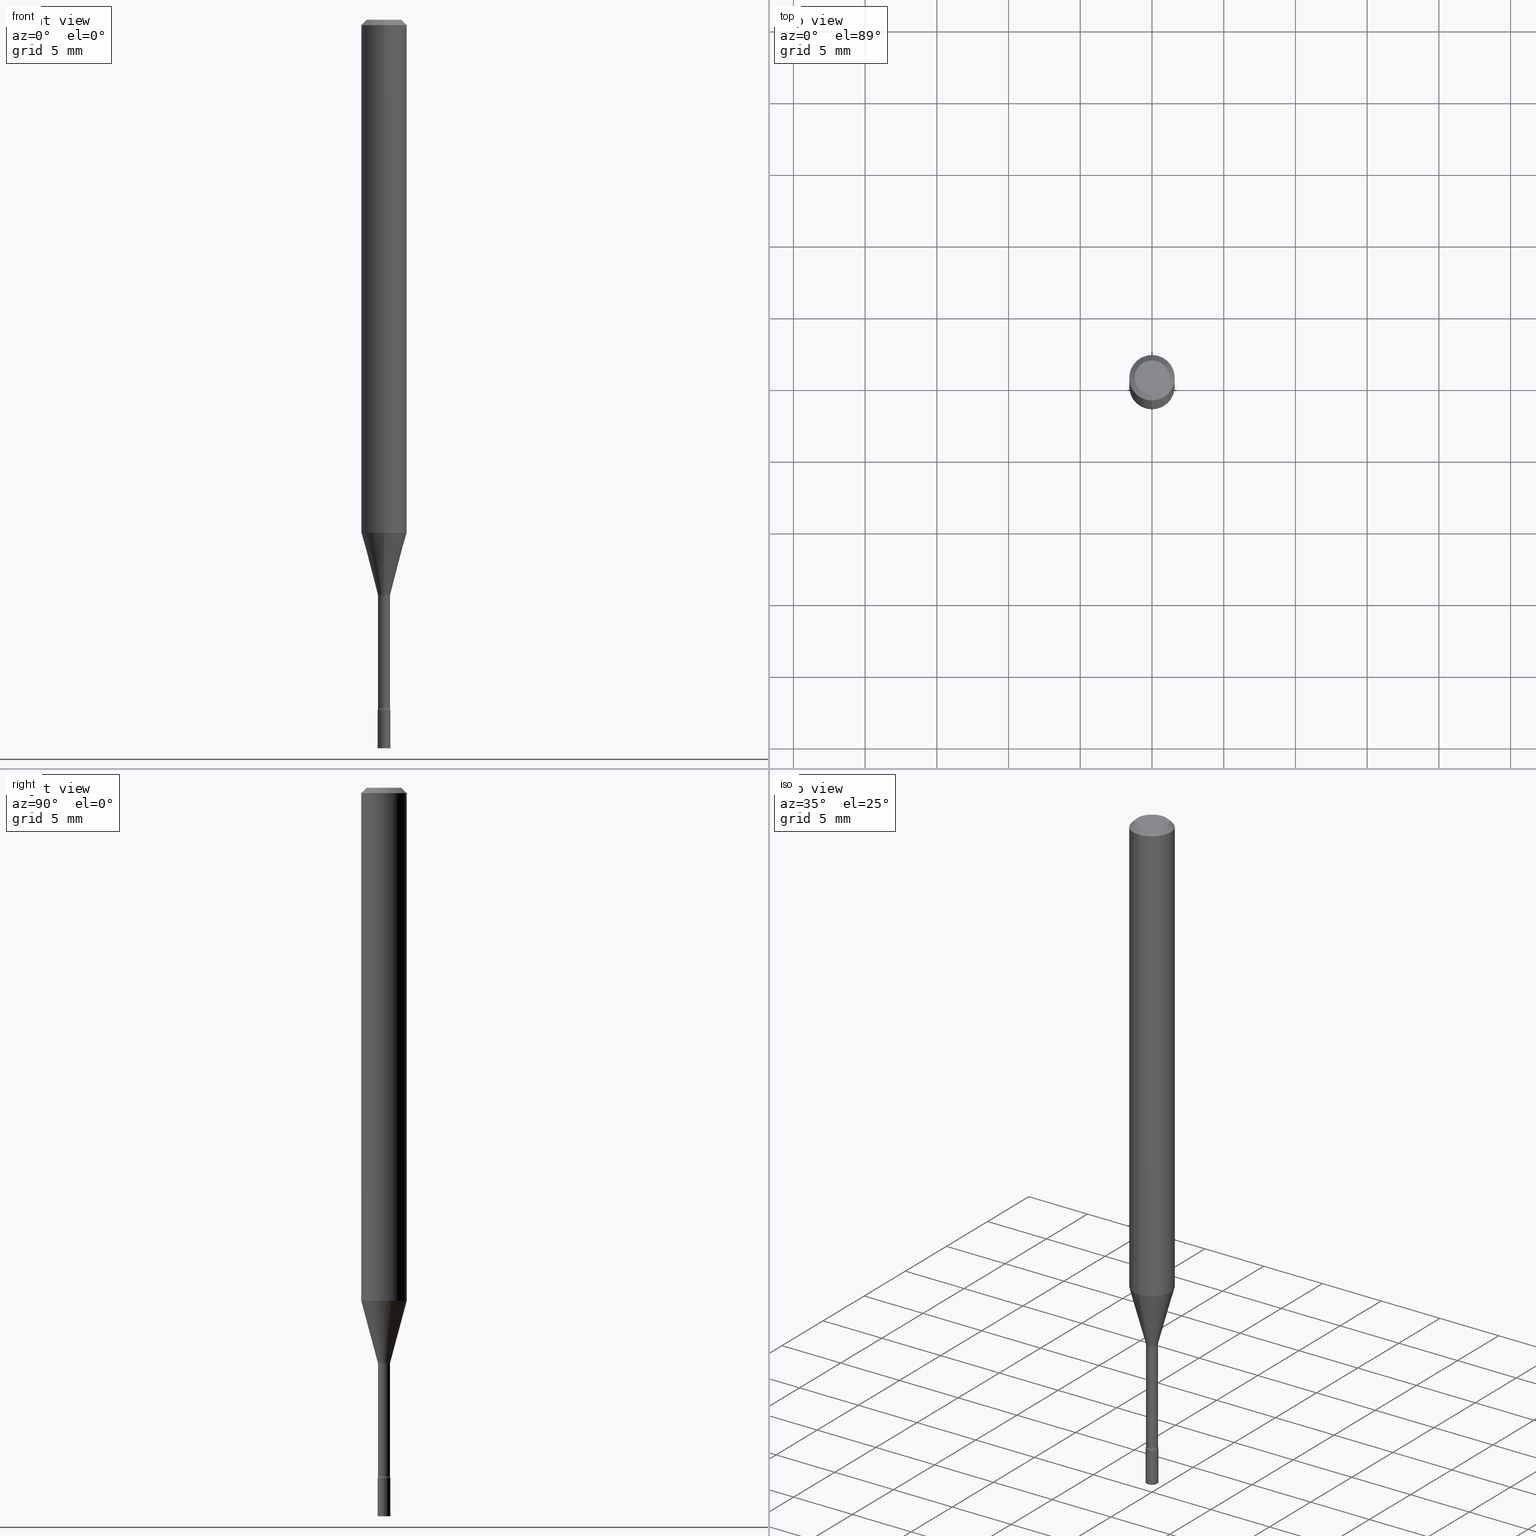
[diagram: canonical four-view strip — front | top / right | iso, engineering-drawing reading convention]
A machine part, canonical four-view strip (front | top / right | iso — engineering-drawing reading convention). The complete STEP part file that produces these views, byte-faithful:
ISO-10303-21;
HEADER;
FILE_DESCRIPTION (( 'STEP AP203' ),
    '1' );
FILE_NAME ('01345.STEP',
    '2024-03-08T21:15:26',
    ( '' ),
    ( '' ),
    'SwSTEP 2.0',
    'SolidWorks 2023',
    '' );
FILE_SCHEMA (( 'CONFIG_CONTROL_DESIGN' ));
ENDSEC;

DATA;
#1 = DIRECTION ( 'NONE',  ( -2.445468806185136877E-29, 3.491481338843145188E-15, 1.000000000000000000 ) ) ;
#2 = ORIENTED_EDGE ( 'NONE', *, *, #147, .F. ) ;
#3 = CARTESIAN_POINT ( 'NONE',  ( 2.234656903965901540E-16, 0.03144999999999447543, -1.581974787463811039 ) ) ;
#4 = EDGE_LOOP ( 'NONE', ( #88, #456, #252, #84 ) ) ;
#5 = CARTESIAN_POINT ( 'NONE',  ( 4.620736693591810603E-29, -6.597026839220941096E-15, -1.889486607215153047 ) ) ;
#6 = EDGE_CURVE ( 'NONE', #7, #242, #381, .T. ) ;
#7 = VERTEX_POINT ( 'NONE', #460 ) ;
#8 = DIRECTION ( 'NONE',  ( 6.982962677686265922E-15, 1.000000000000000000, -3.491438792966129242E-15 ) ) ;
#9 = ORIENTED_EDGE ( 'NONE', *, *, #70, .F. ) ;
#10 = FACE_OUTER_BOUND ( 'NONE', #274, .T. ) ;
#11 = AXIS2_PLACEMENT_3D ( 'NONE', #187, #190, #197 ) ;
#12 = CARTESIAN_POINT ( 'NONE',  ( -4.287811248607203282E-16, -0.06250000000000005551, -0.01499999999999981209 ) ) ;
#13 = LINE ( 'NONE', #81, #476 ) ;
#14 = CIRCLE ( 'NONE', #484, 0.01696111260566397771 ) ;
#15 = ORIENTED_EDGE ( 'NONE', *, *, #150, .T. ) ;
#16 = CARTESIAN_POINT ( 'NONE',  ( 0.000000000000000000, 0.000000000000000000, 0.000000000000000000 ) ) ;
#17 = FACE_OUTER_BOUND ( 'NONE', #333, .T. ) ;
#18 = DIRECTION ( 'NONE',  ( -1.000000000000000000, 6.982962677686265922E-15, -4.883557194083112340E-29 ) ) ;
#19 = CARTESIAN_POINT ( 'NONE',  ( 0.01750000000000000167, -1.222018468595096625E-16, 8.533309357642889039E-31 ) ) ;
#20 = CALENDAR_DATE ( 2024, 8, 3 ) ;
#21 = TOROIDAL_SURFACE ( 'NONE', #49, 0.03145000000000004042, 0.01500000000000001853 ) ;
#22 = APPROVAL_PERSON_ORGANIZATION ( #258, #38, #379 ) ;
#23 = EDGE_CURVE ( 'NONE', #98, #122, #200, .T. ) ;
#24 = ORIENTED_EDGE ( 'NONE', *, *, #6, .F. ) ;
#25 = DIRECTION ( 'NONE',  ( -6.982962677686265922E-15, -1.000000000000000000, 3.483106191921935554E-15 ) ) ;
#26 = DATE_AND_TIME ( #20, #148 ) ;
#27 = ORIENTED_EDGE ( 'NONE', *, *, #254, .T. ) ;
#28 = APPROVAL_DATE_TIME ( #26, #38 ) ;
#29 = CIRCLE ( 'NONE', #11, 0.01644999999999999934 ) ;
#30 = SECURITY_CLASSIFICATION ( '', '', #389 ) ;
#31 = DIRECTION ( 'NONE',  ( -2.445498515812265723E-29, 3.491438792966129637E-15, 1.000000000000000000 ) ) ;
#32 = CONICAL_SURFACE ( 'NONE', #69, 0.06250000000000000000, 0.7853981633974483900 ) ;
#33 = CIRCLE ( 'NONE', #403, 0.01644999999999999934 ) ;
#34 = DIRECTION ( 'NONE',  ( 1.000000000000000000, -6.982962677686248567E-15, 0.000000000000000000 ) ) ;
#35 = EDGE_LOOP ( 'NONE', ( #421, #27, #53, #417 ) ) ;
#36 = ORIENTED_EDGE ( 'NONE', *, *, #23, .T. ) ;
#37 = ORIENTED_EDGE ( 'NONE', *, *, #223, .T. ) ;
#38 = APPROVAL ( #425, 'UNSPECIFIED' ) ;
#39 = CARTESIAN_POINT ( 'NONE',  ( 4.620680557649244882E-29, -6.597107229085755306E-15, -1.889486607215153047 ) ) ;
#40 = DIRECTION ( 'NONE',  ( 7.105427357601001859E-15, 1.000000000000000000, 0.000000000000000000 ) ) ;
#41 = CIRCLE ( 'NONE', #401, 0.01750000000000000167 ) ;
#42 = LOCAL_TIME ( 16, 15, 26.00000000000000000, #134 ) ;
#43 = CARTESIAN_POINT ( 'NONE',  ( 3.859222870935241338E-29, -5.509813379629055980E-15, -1.578092501787273116 ) ) ;
#44 = PLANE ( 'NONE',  #395 ) ;
#45 = DIRECTION ( 'NONE',  ( -2.445498515812265723E-29, 3.491438792966129637E-15, 1.000000000000000000 ) ) ;
#46 = DIRECTION ( 'NONE',  ( -1.000000000000000000, 6.982962677686265922E-15, -4.883557194083112340E-29 ) ) ;
#47 = ORIENTED_EDGE ( 'NONE', *, *, #254, .F. ) ;
#48 = CALENDAR_DATE ( 2024, 8, 3 ) ;
#49 = AXIS2_PLACEMENT_3D ( 'NONE', #39, #392, #311 ) ;
#50 = CIRCLE ( 'NONE', #518, 0.01645000000000002363 ) ;
#51 = CIRCLE ( 'NONE', #414, 0.06250000000000000000 ) ;
#52 = CARTESIAN_POINT ( 'NONE',  ( -1.148697360479391503E-16, -0.01645000000000000975, 5.743416814429288012E-17 ) ) ;
#53 = ORIENTED_EDGE ( 'NONE', *, *, #85, .T. ) ;
#54 = ORIENTED_EDGE ( 'NONE', *, *, #214, .F. ) ;
#55 = CARTESIAN_POINT ( 'NONE',  ( 3.668247773718405836E-31, -5.237158189449205006E-17, -0.01500000000000003067 ) ) ;
#56 = DIRECTION ( 'NONE',  ( -2.445498515812265723E-29, 3.491438792966129637E-15, 1.000000000000000000 ) ) ;
#57 = CARTESIAN_POINT ( 'NONE',  ( 3.668247773718405836E-31, -5.237158189449205006E-17, -0.01500000000000003067 ) ) ;
#58 = ORIENTED_EDGE ( 'NONE', *, *, #474, .F. ) ;
#59 = ADVANCED_FACE ( 'NONE', ( #17 ), #452, .F. ) ;
#60 = CARTESIAN_POINT ( 'NONE',  ( -4.364351673553916201E-16, -0.06250000000000000000, 2.182149245603831023E-16 ) ) ;
#61 = LINE ( 'NONE', #19, #166 ) ;
#62 = COORDINATED_UNIVERSAL_TIME_OFFSET ( 5, 0, .BEHIND. ) ;
#63 = VECTOR ( 'NONE', #409, 39.37007874015748143 ) ;
#64 = CC_DESIGN_APPROVAL ( #264, ( #213 ) ) ;
#65 = MANIFOLD_SOLID_BREP ( 'Body-Move/Copy2[2]', #308 ) ;
#66 = PERSON_AND_ORGANIZATION ( #358, #507 ) ;
#67 = DIMENSIONAL_EXPONENTS ( 1.000000000000000000, 0.000000000000000000, 0.000000000000000000, 0.000000000000000000, 0.000000000000000000, 0.000000000000000000, 0.000000000000000000 ) ;
#68 = APPLICATION_PROTOCOL_DEFINITION ( 'international standard', 'config_control_design', 1994, #354 ) ;
#69 = AXIS2_PLACEMENT_3D ( 'NONE', #184, #267, #360 ) ;
#70 = EDGE_CURVE ( 'NONE', #104, #122, #378, .T. ) ;
#71 = CARTESIAN_POINT ( 'NONE',  ( 4.634163387720833649E-29, -6.616357137107760427E-15, -1.894999999999999796 ) ) ;
#72 = DIRECTION ( 'NONE',  ( 1.000000000000000000, -6.982962677686248567E-15, 0.000000000000000000 ) ) ;
#73 = AXIS2_PLACEMENT_3D ( 'NONE', #439, #77, #40 ) ;
#74 = TOROIDAL_SURFACE ( 'NONE', #355, 0.03144999999999999879, 0.01500000000000002547 ) ;
#75 = CARTESIAN_POINT ( 'NONE',  ( 1.222018468595585719E-16, 0.01749999999999301767, -2.000000000000000000 ) ) ;
#76 = ORIENTED_EDGE ( 'NONE', *, *, #150, .F. ) ;
#77 = DIRECTION ( 'NONE',  ( 1.000000000000000000, -7.105427357601001070E-15, 4.926314987505360953E-29 ) ) ;
#78 = ADVANCED_FACE ( 'NONE', ( #171 ), #93, .T. ) ;
#79 = DIRECTION ( 'NONE',  ( -6.982962677686265922E-15, -1.000000000000000000, 0.000000000000000000 ) ) ;
#80 = ORIENTED_EDGE ( 'NONE', *, *, #97, .F. ) ;
#81 = CARTESIAN_POINT ( 'NONE',  ( 4.364351673553919652E-16, 0.06249999999999995143, -0.01500000000000024751 ) ) ;
#82 = AXIS2_PLACEMENT_3D ( 'NONE', #75, #226, #503 ) ;
#83 = PRODUCT_RELATED_PRODUCT_CATEGORY ( 'detail', '', ( #477 ) ) ;
#84 = ORIENTED_EDGE ( 'NONE', *, *, #23, .F. ) ;
#85 = EDGE_CURVE ( 'NONE', #117, #371, #61, .T. ) ;
#86 = DIRECTION ( 'NONE',  ( -6.982962677686265133E-15, -1.000000000000000000, 3.491438792966130031E-15 ) ) ;
#87 = CARTESIAN_POINT ( 'NONE',  ( -1.222018468594633662E-16, -0.01750000000000662484, -1.894999999999999796 ) ) ;
#88 = ORIENTED_EDGE ( 'NONE', *, *, #97, .T. ) ;
#89 = DIRECTION ( 'NONE',  ( -2.445468806185136597E-29, 3.491481338843145583E-15, 1.000000000000000000 ) ) ;
#90 = DIRECTION ( 'NONE',  ( -6.982962677686266711E-15, -1.000000000000000000, 0.000000000000000000 ) ) ;
#91 = EDGE_LOOP ( 'NONE', ( #96, #302, #36, #256 ) ) ;
#92 = CIRCLE ( 'NONE', #273, 0.01750000000000000167 ) ;
#93 = CYLINDRICAL_SURFACE ( 'NONE', #216, 0.06250000000000000000 ) ;
#94 = CYLINDRICAL_SURFACE ( 'NONE', #322, 0.01645000000000000975 ) ;
#95 = CARTESIAN_POINT ( 'NONE',  ( -1.184388162973470360E-16, -0.01696111260566949067, -1.578092501787273116 ) ) ;
#96 = ORIENTED_EDGE ( 'NONE', *, *, #143, .F. ) ;
#97 = EDGE_CURVE ( 'NONE', #98, #133, #152, .T. ) ;
#98 = VERTEX_POINT ( 'NONE', #450 ) ;
#99 = CARTESIAN_POINT ( 'NONE',  ( 4.440892098500969316E-16, 0.06249999999999507339, -1.408139060311453639 ) ) ;
#100 = PERSON_AND_ORGANIZATION_ROLE ( 'classification_officer' ) ;
#101 = DIRECTION ( 'NONE',  ( -2.445498515812266003E-29, 3.491438792966129242E-15, 1.000000000000000000 ) ) ;
#102 = VERTEX_POINT ( 'NONE', #248 ) ;
#103 = DIRECTION ( 'NONE',  ( -2.445498515812265723E-29, 3.491438792966129637E-15, 1.000000000000000000 ) ) ;
#104 = VERTEX_POINT ( 'NONE', #334 ) ;
#105 = DIRECTION ( 'NONE',  ( -2.445468806185136597E-29, 3.491481338843145583E-15, 1.000000000000000000 ) ) ;
#106 = DATE_TIME_ROLE ( 'classification_date' ) ;
#107 = CIRCLE ( 'NONE', #413, 0.01750000000000000167 ) ;
#108 = VECTOR ( 'NONE', #283, 39.37007874015748143 ) ;
#109 = MECHANICAL_CONTEXT ( 'NONE', #454, 'mechanical' ) ;
#110 = PERSON_AND_ORGANIZATION ( #358, #507 ) ;
#111 = ORIENTED_EDGE ( 'NONE', *, *, #278, .T. ) ;
#112 = AXIS2_PLACEMENT_3D ( 'NONE', #71, #317, #478 ) ;
#113 = EDGE_CURVE ( 'NONE', #122, #368, #235, .T. ) ;
#114 = DIRECTION ( 'NONE',  ( -6.982962677686266711E-15, -1.000000000000000000, 3.491438792966129637E-15 ) ) ;
#115 = DIRECTION ( 'NONE',  ( -2.445498515812265723E-29, 3.491438792966129637E-15, 1.000000000000000000 ) ) ;
#116 = DIRECTION ( 'NONE',  ( -2.445498515812265723E-29, 3.491438792966129637E-15, 1.000000000000000000 ) ) ;
#117 = VERTEX_POINT ( 'NONE', #207 ) ;
#118 = ORIENTED_EDGE ( 'NONE', *, *, #443, .T. ) ;
#119 = CIRCLE ( 'NONE', #112, 0.01750000000000000167 ) ;
#120 = CIRCLE ( 'NONE', #167, 0.01500000000000001853 ) ;
#121 = DIRECTION ( 'NONE',  ( -2.445498515812265723E-29, 3.491438792966129637E-15, 1.000000000000000000 ) ) ;
#122 = VERTEX_POINT ( 'NONE', #298 ) ;
#123 =( LENGTH_UNIT ( ) NAMED_UNIT ( * ) SI_UNIT ( $, .METRE. ) );
#124 = VERTEX_POINT ( 'NONE', #458 ) ;
#125 = FACE_OUTER_BOUND ( 'NONE', #250, .T. ) ;
#126 = ORIENTED_EDGE ( 'NONE', *, *, #194, .F. ) ;
#127 = VECTOR ( 'NONE', #257, 39.37007874015748143 ) ;
#128 = LOCAL_TIME ( 16, 15, 26.00000000000000000, #307 ) ;
#129 = DIRECTION ( 'NONE',  ( -1.807323732225325801E-15, -0.2588190451025175753, 0.9659258262890690894 ) ) ;
#130 = VERTEX_POINT ( 'NONE', #509 ) ;
#131 = UNCERTAINTY_MEASURE_WITH_UNIT (LENGTH_MEASURE( 1.000000000000000082E-05 ), #204, 'distance_accuracy_value', 'NONE');
#132 = DIRECTION ( 'NONE',  ( -6.982962677686265133E-15, -1.000000000000000000, 3.491438792966129242E-15 ) ) ;
#133 = VERTEX_POINT ( 'NONE', #99 ) ;
#134 = COORDINATED_UNIVERSAL_TIME_OFFSET ( 5, 0, .BEHIND. ) ;
#135 = ORIENTED_EDGE ( 'NONE', *, *, #233, .F. ) ;
#136 = DIRECTION ( 'NONE',  ( -2.445468806185136877E-29, 3.491481338843145188E-15, 1.000000000000000000 ) ) ;
#137 = CARTESIAN_POINT ( 'NONE',  ( 4.620736693591810603E-29, -6.597026839220941096E-15, -1.889486607215153047 ) ) ;
#138 = ADVANCED_FACE ( 'NONE', ( #175 ), #496, .T. ) ;
#139 = ADVANCED_FACE ( 'NONE', ( #428 ), #287, .T. ) ;
#140 = ORIENTED_EDGE ( 'NONE', *, *, #453, .F. ) ;
#141 = DIRECTION ( 'NONE',  ( -2.445498515812265723E-29, 3.491438792966129637E-15, 1.000000000000000000 ) ) ;
#142 =( NAMED_UNIT ( * ) PLANE_ANGLE_UNIT ( ) SI_UNIT ( $, .RADIAN. ) );
#143 = EDGE_CURVE ( 'NONE', #133, #368, #348, .T. ) ;
#144 = FACE_OUTER_BOUND ( 'NONE', #445, .T. ) ;
#145 = CARTESIAN_POINT ( 'NONE',  ( 0.000000000000000000, 0.000000000000000000, 0.000000000000000000 ) ) ;
#146 = CALENDAR_DATE ( 2024, 8, 3 ) ;
#147 = EDGE_CURVE ( 'NONE', #124, #102, #29, .T. ) ;
#148 = LOCAL_TIME ( 16, 15, 26.00000000000000000, #471 ) ;
#149 = CARTESIAN_POINT ( 'NONE',  ( 4.440892098500625669E-16, 0.06250000000000000000, -2.182149245603831023E-16 ) ) ;
#150 = EDGE_CURVE ( 'NONE', #377, #124, #288, .T. ) ;
#151 = ADVANCED_FACE ( 'NONE', ( #380 ), #275, .T. ) ;
#152 = CIRCLE ( 'NONE', #366, 0.06250000000000000000 ) ;
#153 = CARTESIAN_POINT ( 'NONE',  ( 1.243449787580639146E-16, 0.01749999999999339237, -1.894999999999999796 ) ) ;
#154 = ADVANCED_BREP_SHAPE_REPRESENTATION ( '01345', ( #228, #65, #247 ), #236 ) ;
#155 = AXIS2_PLACEMENT_3D ( 'NONE', #312, #221, #183 ) ;
#156 = ORIENTED_EDGE ( 'NONE', *, *, #325, .F. ) ;
#157 = PLANE ( 'NONE',  #281 ) ;
#158 = CARTESIAN_POINT ( 'NONE',  ( 7.071386843968881150E-46, -1.009582062203901390E-31, -2.891593185702727337E-17 ) ) ;
#159 = ADVANCED_FACE ( 'NONE', ( #215 ), #375, .T. ) ;
#160 = ORIENTED_EDGE ( 'NONE', *, *, #278, .F. ) ;
#161 = DIRECTION ( 'NONE',  ( -2.445498515812265723E-29, 3.491438792966129637E-15, 1.000000000000000000 ) ) ;
#162 = ADVANCED_FACE ( 'NONE', ( #181 ), #350, .T. ) ;
#163 = ADVANCED_FACE ( 'NONE', ( #188 ), #32, .T. ) ;
#164 = FACE_OUTER_BOUND ( 'NONE', #165, .T. ) ;
#165 = EDGE_LOOP ( 'NONE', ( #156, #118, #15, #58 ) ) ;
#166 = VECTOR ( 'NONE', #136, 39.37007874015748143 ) ;
#167 = AXIS2_PLACEMENT_3D ( 'NONE', #327, #18, #319 ) ;
#168 = DIRECTION ( 'NONE',  ( -2.445498515812265723E-29, 3.491438792966129637E-15, 1.000000000000000000 ) ) ;
#169 = DIRECTION ( 'NONE',  ( -2.445498515812265723E-29, 3.491438792966129637E-15, 1.000000000000000000 ) ) ;
#170 = APPROVAL_ROLE ( '' ) ;
#171 = FACE_OUTER_BOUND ( 'NONE', #4, .T. ) ;
#172 = DIRECTION ( 'NONE',  ( 2.445498515812265723E-29, -3.491438792966129637E-15, -1.000000000000000000 ) ) ;
#173 = VECTOR ( 'NONE', #209, 39.37007874015748143 ) ;
#174 = VECTOR ( 'NONE', #129, 39.37007874015748854 ) ;
#175 = FACE_OUTER_BOUND ( 'NONE', #306, .T. ) ;
#176 = COORDINATED_UNIVERSAL_TIME_OFFSET ( 5, 0, .BEHIND. ) ;
#177 = CARTESIAN_POINT ( 'NONE',  ( 3.868669994914111510E-29, -5.523435448950248304E-15, -1.581974787463811039 ) ) ;
#178 = PERSON_AND_ORGANIZATION ( #358, #507 ) ;
#179 = CIRCLE ( 'NONE', #483, 0.01750000000000000167 ) ;
#180 = CIRCLE ( 'NONE', #282, 0.06250000000000000000 ) ;
#181 = FACE_OUTER_BOUND ( 'NONE', #91, .T. ) ;
#182 = EDGE_CURVE ( 'NONE', #242, #300, #107, .T. ) ;
#183 = DIRECTION ( 'NONE',  ( -6.982962677686266711E-15, -1.000000000000000000, 3.491438792966129637E-15 ) ) ;
#184 = CARTESIAN_POINT ( 'NONE',  ( 3.668247773718405836E-31, -5.237158189449205006E-17, -0.01500000000000003067 ) ) ;
#185 = AXIS2_PLACEMENT_3D ( 'NONE', #177, #212, #291 ) ;
#186 = CARTESIAN_POINT ( 'NONE',  ( -0.01750000000000000167, 1.243449787580175444E-16, -8.608136407946085539E-31 ) ) ;
#187 = CARTESIAN_POINT ( 'NONE',  ( 3.868716994795174635E-29, -5.523368142445497990E-15, -1.581974787463811039 ) ) ;
#188 = FACE_OUTER_BOUND ( 'NONE', #398, .T. ) ;
#189 = ORIENTED_EDGE ( 'NONE', *, *, #498, .T. ) ;
#190 = DIRECTION ( 'NONE',  ( -2.445498515812265723E-29, 3.491438792966129637E-15, 1.000000000000000000 ) ) ;
#191 = CC_DESIGN_PERSON_AND_ORGANIZATION_ASSIGNMENT ( #210, #349, ( #477 ) ) ;
#192 = CONICAL_SURFACE ( 'NONE', #512, 0.01696111260566397771, 0.2617993877991496299 ) ;
#193 = TOROIDAL_SURFACE ( 'NONE', #426, 0.03145000000000004042, 0.01500000000000001853 ) ;
#194 = EDGE_CURVE ( 'NONE', #272, #102, #466, .T. ) ;
#195 = ADVANCED_FACE ( 'NONE', ( #397 ), #192, .T. ) ;
#196 = PLANE ( 'NONE',  #367 ) ;
#197 = DIRECTION ( 'NONE',  ( -6.982962677686266711E-15, -1.000000000000000000, 0.000000000000000000 ) ) ;
#198 = EDGE_CURVE ( 'NONE', #130, #104, #314, .T. ) ;
#199 = CARTESIAN_POINT ( 'NONE',  ( 3.859222870935241338E-29, -5.509813379629055980E-15, -1.578092501787273116 ) ) ;
#200 = LINE ( 'NONE', #60, #127 ) ;
#201 = CARTESIAN_POINT ( 'NONE',  ( -1.184388162973470360E-16, -0.01696111260566949067, -1.578092501787273116 ) ) ;
#202 = CARTESIAN_POINT ( 'NONE',  ( 0.000000000000000000, 0.000000000000000000, 0.000000000000000000 ) ) ;
#203 = ORIENTED_EDGE ( 'NONE', *, *, #194, .T. ) ;
#204 =( CONVERSION_BASED_UNIT ( 'INCH', #280 ) LENGTH_UNIT ( ) NAMED_UNIT ( #67 ) );
#205 = ORIENTED_EDGE ( 'NONE', *, *, #391, .F. ) ;
#206 = ORIENTED_EDGE ( 'NONE', *, *, #488, .T. ) ;
#207 = CARTESIAN_POINT ( 'NONE',  ( 0.01750000000000000167, -7.105164524545800359E-15, -2.000000000000000000 ) ) ;
#208 = CARTESIAN_POINT ( 'NONE',  ( 3.316907271900976096E-16, 0.04749999999999999362, -1.803013085944047814E-16 ) ) ;
#209 = DIRECTION ( 'NONE',  ( -4.851104656540964275E-15, -0.7071067811865500152, -0.7071067811865450192 ) ) ;
#210 = PERSON_AND_ORGANIZATION ( #358, #507 ) ;
#211 = AXIS2_PLACEMENT_3D ( 'NONE', #145, #105, #339 ) ;
#212 = DIRECTION ( 'NONE',  ( -2.445498515812265723E-29, 3.491438792966129637E-15, 1.000000000000000000 ) ) ;
#213 = PRODUCT_DEFINITION ( 'UNKNOWN', '', #455, #446 ) ;
#214 = EDGE_CURVE ( 'NONE', #371, #313, #475, .T. ) ;
#215 = FACE_OUTER_BOUND ( 'NONE', #290, .T. ) ;
#216 = AXIS2_PLACEMENT_3D ( 'NONE', #501, #261, #504 ) ;
#217 = DATE_AND_TIME ( #146, #269 ) ;
#218 = APPROVAL_PERSON_ORGANIZATION ( #429, #264, #422 ) ;
#219 = CARTESIAN_POINT ( 'NONE',  ( 4.890937612370273194E-29, -6.982962677686291165E-15, -2.000000000000000000 ) ) ;
#220 = DIRECTION ( 'NONE',  ( 1.000000000000000000, -6.982962677686248567E-15, 0.000000000000000000 ) ) ;
#221 = DIRECTION ( 'NONE',  ( -2.445498515812265723E-29, 3.491438792966129637E-15, 1.000000000000000000 ) ) ;
#222 = EDGE_LOOP ( 'NONE', ( #229, #246, #260, #227 ) ) ;
#223 = EDGE_CURVE ( 'NONE', #117, #486, #92, .T. ) ;
#224 = AXIS2_PLACEMENT_3D ( 'NONE', #55, #418, #25 ) ;
#225 = AXIS2_PLACEMENT_3D ( 'NONE', #199, #318, #331 ) ;
#226 = DIRECTION ( 'NONE',  ( 2.438088387897960049E-29, -3.491481338843145188E-15, -1.000000000000000000 ) ) ;
#227 = ORIENTED_EDGE ( 'NONE', *, *, #520, .F. ) ;
#228 = MANIFOLD_SOLID_BREP ( 'Body-Move/Copy2[1]', #394 ) ;
#229 = ORIENTED_EDGE ( 'NONE', *, *, #443, .F. ) ;
#230 = CARTESIAN_POINT ( 'NONE',  ( 3.859222870935241338E-29, -5.509813379629055980E-15, -1.578092501787273116 ) ) ;
#231 = CARTESIAN_POINT ( 'NONE',  ( -0.01750000000000000167, -6.675314928639007365E-15, -1.894999999999999796 ) ) ;
#232 = ADVANCED_FACE ( 'NONE', ( #277 ), #21, .F. ) ;
#233 = EDGE_CURVE ( 'NONE', #377, #7, #336, .T. ) ;
#234 = DIRECTION ( 'NONE',  ( 1.000000000000000000, -6.982962677686265922E-15, 4.876176775795935793E-29 ) ) ;
#235 = CIRCLE ( 'NONE', #224, 0.06250000000000000000 ) ;
#236 =( GEOMETRIC_REPRESENTATION_CONTEXT ( 3 ) GLOBAL_UNCERTAINTY_ASSIGNED_CONTEXT ( ( #131 ) ) GLOBAL_UNIT_ASSIGNED_CONTEXT ( ( #204, #142, #385 ) ) REPRESENTATION_CONTEXT ( 'NONE', 'WORKASPACE' ) );
#237 = DIRECTION ( 'NONE',  ( -6.982962677686265922E-15, -1.000000000000000000, 3.491438792966129242E-15 ) ) ;
#238 = FACE_OUTER_BOUND ( 'NONE', #405, .T. ) ;
#239 = CARTESIAN_POINT ( 'NONE',  ( 3.668247773718405836E-31, -5.237158189449205006E-17, -0.01500000000000003067 ) ) ;
#240 = CARTESIAN_POINT ( 'NONE',  ( 4.440892098500972274E-16, 0.06249999999999993755, -0.01500000000000024751 ) ) ;
#241 = CARTESIAN_POINT ( 'NONE',  ( 1.168842800325365499E-16, 0.01645000000000000975, -5.743416814429288012E-17 ) ) ;
#242 = VERTEX_POINT ( 'NONE', #153 ) ;
#243 = DIRECTION ( 'NONE',  ( -6.982962677686265922E-15, -1.000000000000000000, 3.483106191921935554E-15 ) ) ;
#244 = EDGE_CURVE ( 'NONE', #313, #371, #119, .T. ) ;
#245 = AXIS2_PLACEMENT_3D ( 'NONE', #202, #168, #328 ) ;
#246 = ORIENTED_EDGE ( 'NONE', *, *, #6, .T. ) ;
#247 = AXIS2_PLACEMENT_3D ( 'NONE', #299, #305, #340 ) ;
#248 = CARTESIAN_POINT ( 'NONE',  ( 1.168842800325827475E-16, 0.01644999999999447599, -1.581974787463811039 ) ) ;
#249 = DIRECTION ( 'NONE',  ( -6.982962677686266711E-15, -1.000000000000000000, 3.491438792966130426E-15 ) ) ;
#250 = EDGE_LOOP ( 'NONE', ( #24, #135, #468, #111 ) ) ;
#251 = CARTESIAN_POINT ( 'NONE',  ( 2.823025816868859611E-16, 0.01696111260565846823, -1.578092501787273116 ) ) ;
#252 = ORIENTED_EDGE ( 'NONE', *, *, #113, .F. ) ;
#253 = CALENDAR_DATE ( 2024, 8, 3 ) ;
#254 = EDGE_CURVE ( 'NONE', #486, #117, #179, .T. ) ;
#255 = EDGE_CURVE ( 'NONE', #104, #130, #388, .T. ) ;
#256 = ORIENTED_EDGE ( 'NONE', *, *, #430, .F. ) ;
#257 = DIRECTION ( 'NONE',  ( -2.445498515812266003E-29, 3.491438792966129242E-15, 1.000000000000000000 ) ) ;
#258 = PERSON_AND_ORGANIZATION ( #358, #507 ) ;
#259 = CARTESIAN_POINT ( 'NONE',  ( 0.000000000000000000, 0.000000000000000000, 0.000000000000000000 ) ) ;
#260 = ORIENTED_EDGE ( 'NONE', *, *, #182, .T. ) ;
#261 = DIRECTION ( 'NONE',  ( -2.445498515812265723E-29, 3.491438792966129637E-15, 1.000000000000000000 ) ) ;
#262 = APPROVAL_DATE_TIME ( #217, #264 ) ;
#263 = EDGE_CURVE ( 'NONE', #486, #313, #393, .T. ) ;
#264 = APPROVAL ( #461, 'UNSPECIFIED' ) ;
#265 = PERSON_AND_ORGANIZATION_ROLE ( 'design_supplier' ) ;
#266 = ADVANCED_FACE ( 'NONE', ( #351 ), #479, .T. ) ;
#267 = DIRECTION ( 'NONE',  ( 2.445498515812265723E-29, -3.491438792966129637E-15, -1.000000000000000000 ) ) ;
#268 = AXIS2_PLACEMENT_3D ( 'NONE', #5, #115, #434 ) ;
#269 = LOCAL_TIME ( 16, 15, 26.00000000000000000, #62 ) ;
#270 = DIRECTION ( 'NONE',  ( -2.445468806185136597E-29, 3.491481338843145583E-15, 1.000000000000000000 ) ) ;
#271 = DIRECTION ( 'NONE',  ( 7.105427357601000281E-15, 1.000000000000000000, 0.000000000000000000 ) ) ;
#272 = VERTEX_POINT ( 'NONE', #251 ) ;
#273 = AXIS2_PLACEMENT_3D ( 'NONE', #356, #435, #220 ) ;
#274 = EDGE_LOOP ( 'NONE', ( #285, #457 ) ) ;
#275 = CONICAL_SURFACE ( 'NONE', #431, 0.06250000000000000000, 0.7853981633974483900 ) ;
#276 = ORIENTED_EDGE ( 'NONE', *, *, #85, .F. ) ;
#277 = FACE_OUTER_BOUND ( 'NONE', #222, .T. ) ;
#278 = EDGE_CURVE ( 'NONE', #300, #242, #41, .T. ) ;
#279 = CARTESIAN_POINT ( 'NONE',  ( 4.634163387720833649E-29, -6.616357137107760427E-15, -1.894999999999999796 ) ) ;
#280 = LENGTH_MEASURE_WITH_UNIT ( LENGTH_MEASURE( 0.02539999999999999897 ), #123 );
#281 = AXIS2_PLACEMENT_3D ( 'NONE', #490, #316, #237 ) ;
#282 = AXIS2_PLACEMENT_3D ( 'NONE', #440, #365, #444 ) ;
#283 = DIRECTION ( 'NONE',  ( 1.839019923739595977E-15, 0.2588190451025243477, 0.9659258262890673130 ) ) ;
#284 = LINE ( 'NONE', #241, #63 ) ;
#285 = ORIENTED_EDGE ( 'NONE', *, *, #198, .T. ) ;
#286 = PERSON_AND_ORGANIZATION ( #358, #507 ) ;
#287 = CYLINDRICAL_SURFACE ( 'NONE', #491, 0.01750000000000000167 ) ;
#288 = LINE ( 'NONE', #52, #513 ) ;
#289 = ORIENTED_EDGE ( 'NONE', *, *, #263, .T. ) ;
#290 = EDGE_LOOP ( 'NONE', ( #427, #495, #2, #76 ) ) ;
#291 = DIRECTION ( 'NONE',  ( -6.982962677686265133E-15, -1.000000000000000000, 3.491438792966130031E-15 ) ) ;
#292 = CARTESIAN_POINT ( 'NONE',  ( 3.859222870935241338E-29, -5.509813379629055980E-15, -1.578092501787273116 ) ) ;
#293 = VECTOR ( 'NONE', #399, 39.37007874015748143 ) ;
#294 = EDGE_LOOP ( 'NONE', ( #160, #338 ) ) ;
#295 = CIRCLE ( 'NONE', #433, 0.01500000000000002720 ) ;
#296 = CARTESIAN_POINT ( 'NONE',  ( 4.634219687464243467E-29, -6.616276512670814159E-15, -1.894999999999999796 ) ) ;
#297 = ORIENTED_EDGE ( 'NONE', *, *, #70, .T. ) ;
#298 = CARTESIAN_POINT ( 'NONE',  ( -4.364351673553912750E-16, -0.06250000000000005551, -0.01499999999999981209 ) ) ;
#299 = CARTESIAN_POINT ( 'NONE',  ( 0.000000000000000000, 0.000000000000000000, 0.000000000000000000 ) ) ;
#300 = VERTEX_POINT ( 'NONE', #87 ) ;
#301 = DIRECTION ( 'NONE',  ( 6.982962677686265922E-15, 1.000000000000000000, -3.483106191921935554E-15 ) ) ;
#302 = ORIENTED_EDGE ( 'NONE', *, *, #453, .T. ) ;
#303 = AXIS2_PLACEMENT_3D ( 'NONE', #3, #515, #271 ) ;
#304 = ORIENTED_EDGE ( 'NONE', *, *, #488, .F. ) ;
#305 = DIRECTION ( 'NONE',  ( 0.000000000000000000, 0.000000000000000000, 1.000000000000000000 ) ) ;
#306 = EDGE_LOOP ( 'NONE', ( #37, #289, #54, #276 ) ) ;
#307 = COORDINATED_UNIVERSAL_TIME_OFFSET ( 5, 0, .BEHIND. ) ;
#308 = CLOSED_SHELL ( 'NONE', ( #59, #159, #232, #163, #78, #472, #195, #162, #151, #473, #323, #514, #480, #390 ) ) ;
#309 = DIRECTION ( 'NONE',  ( -2.445498515812265723E-29, 3.491438792966129637E-15, 1.000000000000000000 ) ) ;
#310 = APPROVAL_PERSON_ORGANIZATION ( #286, #449, #170 ) ;
#311 = DIRECTION ( 'NONE',  ( -6.982962677686265133E-15, -1.000000000000000000, 3.491438792966129242E-15 ) ) ;
#312 = CARTESIAN_POINT ( 'NONE',  ( 7.071386843968881150E-46, -1.009582062203901390E-31, -2.891593185702727337E-17 ) ) ;
#313 = VERTEX_POINT ( 'NONE', #231 ) ;
#314 = CIRCLE ( 'NONE', #437, 0.04749999999999999362 ) ;
#315 = CC_DESIGN_APPROVAL ( #449, ( #30 ) ) ;
#316 = DIRECTION ( 'NONE',  ( -2.445498515812265723E-29, 3.491438792966129242E-15, 1.000000000000000000 ) ) ;
#317 = DIRECTION ( 'NONE',  ( -2.445468806185136597E-29, 3.491481338843145583E-15, 1.000000000000000000 ) ) ;
#318 = DIRECTION ( 'NONE',  ( -2.445498515812265723E-29, 3.491438792966129637E-15, 1.000000000000000000 ) ) ;
#319 = DIRECTION ( 'NONE',  ( -6.982962677686267499E-15, -1.000000000000000000, 0.000000000000000000 ) ) ;
#320 = ORIENTED_EDGE ( 'NONE', *, *, #244, .T. ) ;
#321 = DIRECTION ( 'NONE',  ( -2.445498515812265723E-29, 3.491438792966129637E-15, 1.000000000000000000 ) ) ;
#322 = AXIS2_PLACEMENT_3D ( 'NONE', #16, #321, #249 ) ;
#323 = ADVANCED_FACE ( 'NONE', ( #494 ), #157, .F. ) ;
#324 = ORIENTED_EDGE ( 'NONE', *, *, #474, .T. ) ;
#325 = EDGE_CURVE ( 'NONE', #7, #102, #284, .T. ) ;
#326 = DIRECTION ( 'NONE',  ( -2.445498515812265723E-29, 3.491438792966129637E-15, 1.000000000000000000 ) ) ;
#327 = CARTESIAN_POINT ( 'NONE',  ( -2.196141762131871604E-16, -0.03145000000000663931, -1.889486607215153047 ) ) ;
#328 = DIRECTION ( 'NONE',  ( -6.982962677686265922E-15, -1.000000000000000000, 3.491438792966129637E-15 ) ) ;
#329 = DIRECTION ( 'NONE',  ( -6.982962677686265133E-15, -1.000000000000000000, 0.000000000000000000 ) ) ;
#330 = ORIENTED_EDGE ( 'NONE', *, *, #487, .T. ) ;
#331 = DIRECTION ( 'NONE',  ( -6.982962677686266711E-15, -1.000000000000000000, 0.000000000000000000 ) ) ;
#332 = DATE_AND_TIME ( #48, #42 ) ;
#333 = EDGE_LOOP ( 'NONE', ( #511, #203, #324, #382 ) ) ;
#334 = CARTESIAN_POINT ( 'NONE',  ( -3.773273898774340269E-16, -0.04749999999999999362, 1.369274108088638652E-16 ) ) ;
#335 = DATE_TIME_ROLE ( 'creation_date' ) ;
#336 = CIRCLE ( 'NONE', #268, 0.01645000000000002363 ) ;
#337 = CIRCLE ( 'NONE', #225, 0.01696111260566397771 ) ;
#338 = ORIENTED_EDGE ( 'NONE', *, *, #182, .F. ) ;
#339 = DIRECTION ( 'NONE',  ( 1.000000000000000000, -6.982962677686265922E-15, 4.876176775795936353E-29 ) ) ;
#340 = DIRECTION ( 'NONE',  ( 1.000000000000000000, 0.000000000000000000, 0.000000000000000000 ) ) ;
#341 = CARTESIAN_POINT ( 'NONE',  ( 3.868669994914111510E-29, -5.523435448950248304E-15, -1.581974787463811039 ) ) ;
#342 = ORIENTED_EDGE ( 'NONE', *, *, #391, .T. ) ;
#343 = CALENDAR_DATE ( 2024, 8, 3 ) ;
#344 = ORIENTED_EDGE ( 'NONE', *, *, #223, .F. ) ;
#345 = DATE_AND_TIME ( #253, #128 ) ;
#346 = CONICAL_SURFACE ( 'NONE', #347, 0.01696111260566397771, 0.2617993877991496299 ) ;
#347 = AXIS2_PLACEMENT_3D ( 'NONE', #292, #407, #90 ) ;
#348 = LINE ( 'NONE', #149, #293 ) ;
#349 = PERSON_AND_ORGANIZATION_ROLE ( 'design_owner' ) ;
#350 = CYLINDRICAL_SURFACE ( 'NONE', #245, 0.06250000000000000000 ) ;
#351 = FACE_OUTER_BOUND ( 'NONE', #415, .T. ) ;
#352 = CARTESIAN_POINT ( 'NONE',  ( 4.634219687464243467E-29, -6.616276512670814159E-15, -1.894999999999999796 ) ) ;
#353 = AXIS2_PLACEMENT_3D ( 'NONE', #259, #31, #423 ) ;
#354 = APPLICATION_CONTEXT ( 'configuration controlled 3d designs of mechanical parts and assemblies' ) ;
#355 = AXIS2_PLACEMENT_3D ( 'NONE', #341, #103, #86 ) ;
#356 = CARTESIAN_POINT ( 'NONE',  ( 4.890937612370273194E-29, -6.982962677686291165E-15, -2.000000000000000000 ) ) ;
#357 = VERTEX_POINT ( 'NONE', #95 ) ;
#358 = PERSON ( 'UNSPECIFIED', 'UNSPECIFIED', 'UNSPECIFIED', ('UNSPECIFIED'), ('UNSPECIFIED'), ('UNSPECIFIED') ) ;
#359 = ORIENTED_EDGE ( 'NONE', *, *, #441, .F. ) ;
#360 = DIRECTION ( 'NONE',  ( 6.982962677686265922E-15, 1.000000000000000000, -3.483106191921935554E-15 ) ) ;
#361 = DIRECTION ( 'NONE',  ( 2.445498515812265723E-29, -3.491438792966129242E-15, -1.000000000000000000 ) ) ;
#362 = CC_DESIGN_PERSON_AND_ORGANIZATION_ASSIGNMENT ( #66, #387, ( #213 ) ) ;
#363 = DIRECTION ( 'NONE',  ( -6.982962677686265133E-15, -1.000000000000000000, 0.000000000000000000 ) ) ;
#364 = DIRECTION ( 'NONE',  ( -6.982962677686265922E-15, -1.000000000000000000, 0.000000000000000000 ) ) ;
#365 = DIRECTION ( 'NONE',  ( -2.445498515812265723E-29, 3.491438792966129637E-15, 1.000000000000000000 ) ) ;
#366 = AXIS2_PLACEMENT_3D ( 'NONE', #464, #326, #383 ) ;
#367 = AXIS2_PLACEMENT_3D ( 'NONE', #208, #361, #8 ) ;
#368 = VERTEX_POINT ( 'NONE', #240 ) ;
#369 = SHAPE_DEFINITION_REPRESENTATION ( #470, #154 ) ;
#370 = DIRECTION ( 'NONE',  ( -2.445498515812265723E-29, 3.491438792966129637E-15, 1.000000000000000000 ) ) ;
#371 = VERTEX_POINT ( 'NONE', #420 ) ;
#372 = CC_DESIGN_DATE_AND_TIME_ASSIGNMENT ( #510, #106, ( #30 ) ) ;
#373 = LINE ( 'NONE', #201, #174 ) ;
#374 = EDGE_CURVE ( 'NONE', #357, #124, #295, .T. ) ;
#375 = CYLINDRICAL_SURFACE ( 'NONE', #353, 0.01645000000000000975 ) ;
#376 = APPROVAL_DATE_TIME ( #332, #449 ) ;
#377 = VERTEX_POINT ( 'NONE', #508 ) ;
#378 = LINE ( 'NONE', #12, #173 ) ;
#379 = APPROVAL_ROLE ( '' ) ;
#380 = FACE_OUTER_BOUND ( 'NONE', #410, .T. ) ;
#381 = CIRCLE ( 'NONE', #73, 0.01500000000000001853 ) ;
#382 = ORIENTED_EDGE ( 'NONE', *, *, #374, .F. ) ;
#383 = DIRECTION ( 'NONE',  ( -6.982962677686265922E-15, -1.000000000000000000, 4.370956789862821150E-15 ) ) ;
#384 = ORIENTED_EDGE ( 'NONE', *, *, #147, .T. ) ;
#385 =( NAMED_UNIT ( * ) SI_UNIT ( $, .STERADIAN. ) SOLID_ANGLE_UNIT ( ) );
#386 = DIRECTION ( 'NONE',  ( 1.000000000000000000, -6.982962677686265922E-15, 4.876176775795936353E-29 ) ) ;
#387 = PERSON_AND_ORGANIZATION_ROLE ( 'creator' ) ;
#388 = CIRCLE ( 'NONE', #155, 0.04749999999999999362 ) ;
#389 = SECURITY_CLASSIFICATION_LEVEL ( 'unclassified' ) ;
#390 = ADVANCED_FACE ( 'NONE', ( #144 ), #74, .F. ) ;
#391 = EDGE_CURVE ( 'NONE', #272, #133, #462, .T. ) ;
#392 = DIRECTION ( 'NONE',  ( -2.445498515812265723E-29, 3.491438792966129637E-15, 1.000000000000000000 ) ) ;
#393 = LINE ( 'NONE', #186, #506 ) ;
#394 = CLOSED_SHELL ( 'NONE', ( #138, #442, #139, #266 ) ) ;
#395 = AXIS2_PLACEMENT_3D ( 'NONE', #279, #502, #234 ) ;
#396 = ORIENTED_EDGE ( 'NONE', *, *, #498, .F. ) ;
#397 = FACE_OUTER_BOUND ( 'NONE', #481, .T. ) ;
#398 = EDGE_LOOP ( 'NONE', ( #489, #297, #499, #396 ) ) ;
#399 = DIRECTION ( 'NONE',  ( -2.445498515812266003E-29, 3.491438792966129242E-15, 1.000000000000000000 ) ) ;
#400 = CC_DESIGN_DATE_AND_TIME_ASSIGNMENT ( #345, #335, ( #213 ) ) ;
#401 = AXIS2_PLACEMENT_3D ( 'NONE', #296, #141, #364 ) ;
#402 = CARTESIAN_POINT ( 'NONE',  ( 3.868716994795174635E-29, -5.523368142445497990E-15, -1.581974787463811039 ) ) ;
#403 = AXIS2_PLACEMENT_3D ( 'NONE', #402, #56, #451 ) ;
#404 = FACE_OUTER_BOUND ( 'NONE', #500, .T. ) ;
#405 = EDGE_LOOP ( 'NONE', ( #424, #342, #80, #304 ) ) ;
#406 = ORIENTED_EDGE ( 'NONE', *, *, #198, .F. ) ;
#407 = DIRECTION ( 'NONE',  ( -2.445498515812265723E-29, 3.491438792966129637E-15, 1.000000000000000000 ) ) ;
#408 = CARTESIAN_POINT ( 'NONE',  ( -2.196141762131943341E-16, -0.03145000000000552215, -1.581974787463811039 ) ) ;
#409 = DIRECTION ( 'NONE',  ( -2.445498515812266003E-29, 3.491438792966129242E-15, 1.000000000000000000 ) ) ;
#410 = EDGE_LOOP ( 'NONE', ( #9, #406, #189, #463 ) ) ;
#411 = APPROVAL_STATUS ( 'not_yet_approved' ) ;
#412 = DIRECTION ( 'NONE',  ( 4.937700262164548042E-15, 0.7071067811865451302, -0.7071067811865499042 ) ) ;
#413 = AXIS2_PLACEMENT_3D ( 'NONE', #352, #116, #79 ) ;
#414 = AXIS2_PLACEMENT_3D ( 'NONE', #239, #169, #243 ) ;
#415 = EDGE_LOOP ( 'NONE', ( #344, #47 ) ) ;
#416 = CC_DESIGN_PERSON_AND_ORGANIZATION_ASSIGNMENT ( #465, #100, ( #30 ) ) ;
#417 = ORIENTED_EDGE ( 'NONE', *, *, #244, .F. ) ;
#418 = DIRECTION ( 'NONE',  ( -2.445498515812265723E-29, 3.491438792966129637E-15, 1.000000000000000000 ) ) ;
#419 = CARTESIAN_POINT ( 'NONE',  ( -0.01750000000000000167, -6.675314928639007365E-15, -2.000000000000000000 ) ) ;
#420 = CARTESIAN_POINT ( 'NONE',  ( 0.01750000000000000167, -6.738558983967269622E-15, -1.894999999999999796 ) ) ;
#421 = ORIENTED_EDGE ( 'NONE', *, *, #263, .F. ) ;
#422 = APPROVAL_ROLE ( '' ) ;
#423 = DIRECTION ( 'NONE',  ( -6.982962677686266711E-15, -1.000000000000000000, 3.491438792966130426E-15 ) ) ;
#424 = ORIENTED_EDGE ( 'NONE', *, *, #441, .T. ) ;
#425 = APPROVAL_STATUS ( 'not_yet_approved' ) ;
#426 = AXIS2_PLACEMENT_3D ( 'NONE', #448, #161, #132 ) ;
#427 = ORIENTED_EDGE ( 'NONE', *, *, #233, .T. ) ;
#428 = FACE_OUTER_BOUND ( 'NONE', #35, .T. ) ;
#429 = PERSON_AND_ORGANIZATION ( #358, #507 ) ;
#430 = EDGE_CURVE ( 'NONE', #368, #122, #51, .T. ) ;
#431 = AXIS2_PLACEMENT_3D ( 'NONE', #57, #172, #301 ) ;
#432 = CC_DESIGN_PERSON_AND_ORGANIZATION_ASSIGNMENT ( #110, #505, ( #455 ) ) ;
#433 = AXIS2_PLACEMENT_3D ( 'NONE', #408, #46, #329 ) ;
#434 = DIRECTION ( 'NONE',  ( -6.982962677686265133E-15, -1.000000000000000000, 0.000000000000000000 ) ) ;
#435 = DIRECTION ( 'NONE',  ( -2.445468806185136597E-29, 3.491481338843145583E-15, 1.000000000000000000 ) ) ;
#436 = DIRECTION ( 'NONE',  ( -2.445468806185136597E-29, 3.491481338843145583E-15, 1.000000000000000000 ) ) ;
#437 = AXIS2_PLACEMENT_3D ( 'NONE', #158, #309, #114 ) ;
#438 = CC_DESIGN_SECURITY_CLASSIFICATION ( #30, ( #455 ) ) ;
#439 = CARTESIAN_POINT ( 'NONE',  ( 2.234656903965979440E-16, 0.03144999999999344154, -1.889486607215153047 ) ) ;
#440 = CARTESIAN_POINT ( 'NONE',  ( 3.443601982048937834E-29, -4.916431341062281529E-15, -1.408139060311453417 ) ) ;
#441 = EDGE_CURVE ( 'NONE', #357, #272, #337, .T. ) ;
#442 = ADVANCED_FACE ( 'NONE', ( #404 ), #44, .T. ) ;
#443 = EDGE_CURVE ( 'NONE', #7, #377, #50, .T. ) ;
#444 = DIRECTION ( 'NONE',  ( -6.982962677686265922E-15, -1.000000000000000000, 4.370956789862821150E-15 ) ) ;
#445 = EDGE_LOOP ( 'NONE', ( #126, #359, #482, #384 ) ) ;
#446 = DESIGN_CONTEXT ( 'detailed design', #354, 'design' ) ;
#447 = CARTESIAN_POINT ( 'NONE',  ( 0.000000000000000000, 0.000000000000000000, 0.000000000000000000 ) ) ;
#448 = CARTESIAN_POINT ( 'NONE',  ( 4.620680557649244882E-29, -6.597107229085755306E-15, -1.889486607215153047 ) ) ;
#449 = APPROVAL ( #411, 'UNSPECIFIED' ) ;
#450 = CARTESIAN_POINT ( 'NONE',  ( -4.364351673553573540E-16, -0.06250000000000494049, -1.408139060311453195 ) ) ;
#451 = DIRECTION ( 'NONE',  ( -6.982962677686266711E-15, -1.000000000000000000, 0.000000000000000000 ) ) ;
#452 = TOROIDAL_SURFACE ( 'NONE', #185, 0.03144999999999999879, 0.01500000000000002547 ) ;
#453 = EDGE_CURVE ( 'NONE', #133, #98, #180, .T. ) ;
#454 = APPLICATION_CONTEXT ( 'configuration controlled 3d designs of mechanical parts and assemblies' ) ;
#455 = PRODUCT_DEFINITION_FORMATION_WITH_SPECIFIED_SOURCE ( 'ANY', '', #477, .NOT_KNOWN. ) ;
#456 = ORIENTED_EDGE ( 'NONE', *, *, #143, .T. ) ;
#457 = ORIENTED_EDGE ( 'NONE', *, *, #255, .T. ) ;
#458 = CARTESIAN_POINT ( 'NONE',  ( -1.148697360479003975E-16, -0.01645000000000552270, -1.581974787463811039 ) ) ;
#459 = ORIENTED_EDGE ( 'NONE', *, *, #214, .T. ) ;
#460 = CARTESIAN_POINT ( 'NONE',  ( 1.206146293953234297E-16, 0.01644999999999342821, -1.889486607215153047 ) ) ;
#461 = APPROVAL_STATUS ( 'not_yet_approved' ) ;
#462 = LINE ( 'NONE', #497, #108 ) ;
#463 = ORIENTED_EDGE ( 'NONE', *, *, #430, .T. ) ;
#464 = CARTESIAN_POINT ( 'NONE',  ( 3.443601982048937834E-29, -4.916431341062281529E-15, -1.408139060311453417 ) ) ;
#465 = PERSON_AND_ORGANIZATION ( #358, #507 ) ;
#466 = CIRCLE ( 'NONE', #303, 0.01500000000000002720 ) ;
#467 = LOCAL_TIME ( 16, 15, 26.00000000000000000, #176 ) ;
#468 = ORIENTED_EDGE ( 'NONE', *, *, #520, .T. ) ;
#469 = APPLICATION_PROTOCOL_DEFINITION ( 'international standard', 'config_control_design', 1994, #454 ) ;
#470 = PRODUCT_DEFINITION_SHAPE ( 'NONE', 'NONE',  #213 ) ;
#471 = COORDINATED_UNIVERSAL_TIME_OFFSET ( 5, 0, .BEHIND. ) ;
#472 = ADVANCED_FACE ( 'NONE', ( #238 ), #346, .T. ) ;
#473 = ADVANCED_FACE ( 'NONE', ( #10 ), #196, .F. ) ;
#474 = EDGE_CURVE ( 'NONE', #102, #124, #33, .T. ) ;
#475 = CIRCLE ( 'NONE', #517, 0.01750000000000000167 ) ;
#476 = VECTOR ( 'NONE', #412, 39.37007874015748143 ) ;
#477 = PRODUCT ( '01345', '01345', '', ( #109 ) ) ;
#478 = DIRECTION ( 'NONE',  ( 1.000000000000000000, -6.982962677686248567E-15, 0.000000000000000000 ) ) ;
#479 = PLANE ( 'NONE',  #82 ) ;
#480 = ADVANCED_FACE ( 'NONE', ( #164 ), #94, .T. ) ;
#481 = EDGE_LOOP ( 'NONE', ( #205, #330, #206, #140 ) ) ;
#482 = ORIENTED_EDGE ( 'NONE', *, *, #374, .T. ) ;
#483 = AXIS2_PLACEMENT_3D ( 'NONE', #219, #436, #72 ) ;
#484 = AXIS2_PLACEMENT_3D ( 'NONE', #43, #45, #492 ) ;
#485 = CARTESIAN_POINT ( 'NONE',  ( 4.634163387720833649E-29, -6.616357137107760427E-15, -1.894999999999999796 ) ) ;
#486 = VERTEX_POINT ( 'NONE', #419 ) ;
#487 = EDGE_CURVE ( 'NONE', #272, #357, #14, .T. ) ;
#488 = EDGE_CURVE ( 'NONE', #357, #98, #373, .T. ) ;
#489 = ORIENTED_EDGE ( 'NONE', *, *, #255, .F. ) ;
#490 = CARTESIAN_POINT ( 'NONE',  ( 1.222018468595560081E-16, 0.01749999999999338543, -1.894999999999999796 ) ) ;
#491 = AXIS2_PLACEMENT_3D ( 'NONE', #447, #89, #386 ) ;
#492 = DIRECTION ( 'NONE',  ( -6.982962677686266711E-15, -1.000000000000000000, 0.000000000000000000 ) ) ;
#493 = CC_DESIGN_APPROVAL ( #38, ( #455 ) ) ;
#494 = FACE_OUTER_BOUND ( 'NONE', #294, .T. ) ;
#495 = ORIENTED_EDGE ( 'NONE', *, *, #325, .T. ) ;
#496 = CYLINDRICAL_SURFACE ( 'NONE', #211, 0.01750000000000000167 ) ;
#497 = CARTESIAN_POINT ( 'NONE',  ( 1.205159535236746208E-16, 0.01696111260565846823, -1.578092501787273116 ) ) ;
#498 = EDGE_CURVE ( 'NONE', #130, #368, #13, .T. ) ;
#499 = ORIENTED_EDGE ( 'NONE', *, *, #113, .T. ) ;
#500 = EDGE_LOOP ( 'NONE', ( #459, #320 ) ) ;
#501 = CARTESIAN_POINT ( 'NONE',  ( 0.000000000000000000, 0.000000000000000000, 0.000000000000000000 ) ) ;
#502 = DIRECTION ( 'NONE',  ( -2.438088387897960049E-29, 3.491481338843145188E-15, 1.000000000000000000 ) ) ;
#503 = DIRECTION ( 'NONE',  ( -1.000000000000000000, 6.982962677686265922E-15, -4.876176775795935793E-29 ) ) ;
#504 = DIRECTION ( 'NONE',  ( -6.982962677686265922E-15, -1.000000000000000000, 3.491438792966129637E-15 ) ) ;
#505 = PERSON_AND_ORGANIZATION_ROLE ( 'creator' ) ;
#506 = VECTOR ( 'NONE', #1, 39.37007874015748143 ) ;
#507 = ORGANIZATION ( 'UNSPECIFIED', 'UNSPECIFIED', '' ) ;
#508 = CARTESIAN_POINT ( 'NONE',  ( -1.148697360478930266E-16, -0.01645000000000661905, -1.889486607215153047 ) ) ;
#509 = CARTESIAN_POINT ( 'NONE',  ( 3.840629472727447874E-16, 0.04749999999999999362, -1.947592745229184365E-16 ) ) ;
#510 = DATE_AND_TIME ( #343, #467 ) ;
#511 = ORIENTED_EDGE ( 'NONE', *, *, #487, .F. ) ;
#512 = AXIS2_PLACEMENT_3D ( 'NONE', #230, #121, #519 ) ;
#513 = VECTOR ( 'NONE', #101, 39.37007874015748143 ) ;
#514 = ADVANCED_FACE ( 'NONE', ( #125 ), #193, .F. ) ;
#515 = DIRECTION ( 'NONE',  ( 1.000000000000000000, -7.105427357601001070E-15, 4.926314987505360953E-29 ) ) ;
#516 = CC_DESIGN_PERSON_AND_ORGANIZATION_ASSIGNMENT ( #178, #265, ( #455 ) ) ;
#517 = AXIS2_PLACEMENT_3D ( 'NONE', #485, #270, #34 ) ;
#518 = AXIS2_PLACEMENT_3D ( 'NONE', #137, #370, #363 ) ;
#519 = DIRECTION ( 'NONE',  ( -6.982962677686266711E-15, -1.000000000000000000, 0.000000000000000000 ) ) ;
#520 = EDGE_CURVE ( 'NONE', #377, #300, #120, .T. ) ;
ENDSEC;
END-ISO-10303-21;
